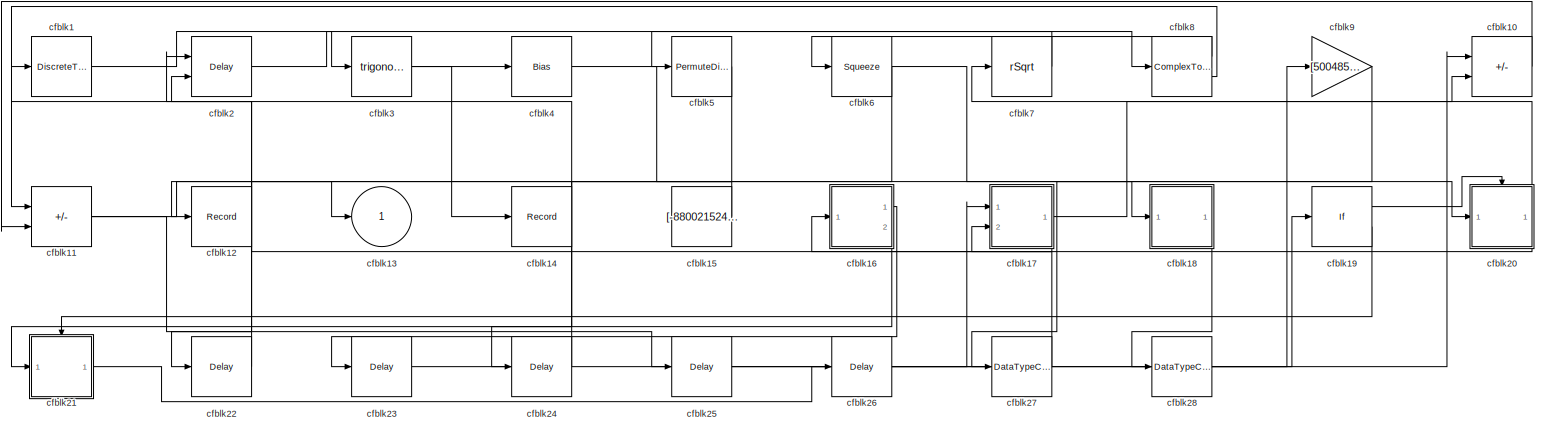
[diagram: root canvas - part 1/1, most of the canvas]
MODEL slx_1ea41b6b78b6
KIND model
CONFIG AbsTol = auto
CONFIG EnableMultiTasking = off
CONFIG FixedStep = auto
CONFIG MaxStep = auto
CONFIG MinStep = auto
CONFIG RelTol = 1e-3
CONFIG SampleTimeConstraint = Unconstrained
CONFIG SolverName = VariableStepAuto
CONFIG StartTime = 0.0
CONFIG StopTime = 10.0
BLOCK [DiscreteTransferFcn] cfblk1
  InputPortMap = u0
  Ports = [1, 1]
  SampleTime = 1
BLOCK [Sum] cfblk10
  IconShape = rectangular
  Inputs = +-
  Ports = [2, 1]
BLOCK [Sum] cfblk11
  IconShape = rectangular
  Inputs = --
  Ports = [2, 1]
BLOCK [Record] cfblk12
  FileSettingsInternal = {"entries":[{"content":{"excelSettings":{"content":{},"type":"Streamout.ExcelSettings"}},"type":"Streamout.FileSettingStorage","uuid":"99121057-6bef-407f-aaef-170d9c7b3167"}],"packageUris":["http://schema.mathworks.com/mf0/streamout_blocks/R2020a"],"version":"1.0"}
  Ports = [1]
  SignalsInternal = {"entries":[{"content":{"signals":[{"content":{"blockPath":["sampleModel288/cfblk12"],"channel":[],"dimensions":[1],"domain":"sampleModel288/cfblk12","lineColor":"#fe330a","plots":[1],"port":1,"sid":[""],"signalID":12254,"signalName":"cfblk15"},"type":"RecordBlkView.Signal","uuid":"5aa2cc36-c58b-4dea-8277-25bc0cf200c1"}]},"type":"RecordBlkView.InputSignals","uuid":"3db44b6d-059e-402a-99a5-882ccea2...<+98ch>
  VisualizationBindings = {"sparklinesplugin":{"info":[{"bindingParametersList":[],"subplotID":1}]}}
BLOCK [Outport] cfblk13
BLOCK [Record] cfblk14
  FileSettingsInternal = {"entries":[{"content":{"excelSettings":{"content":{},"type":"Streamout.ExcelSettings"}},"type":"Streamout.FileSettingStorage","uuid":"4ec19c18-7a8b-4270-a29a-3678415878d8"}],"packageUris":["http://schema.mathworks.com/mf0/streamout_blocks/R2020a"],"version":"1.0"}
  Ports = [1]
  SignalsInternal = {"entries":[{"content":{"signals":[{"content":{"blockPath":["sampleModel288/cfblk14"],"channel":[],"dimensions":[1],"domain":"sampleModel288/cfblk14","lineColor":"#ff13a6","plots":[1],"port":1,"sid":[""],"signalID":12250,"signalName":"cfblk3"},"type":"RecordBlkView.Signal","uuid":"5c43b3db-2ae5-42b3-9552-7b278d10c03a"}]},"type":"RecordBlkView.InputSignals","uuid":"71f823b3-9054-4343-a0f3-88d36fe46...<+97ch>
  VisualizationBindings = {"sparklinesplugin":{"info":[{"bindingParametersList":[],"subplotID":1}]}}
BLOCK [Constant] cfblk15
  SampleTime = 1
  Value = [-880021524.207456]
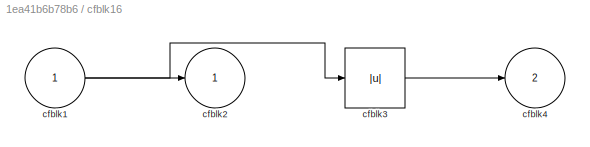
BLOCK [SubSystem] cfblk16
  Ports = [1, 2]
  RequestExecContextInheritance = off
BLOCK [Inport] cfblk16/cfblk1
BLOCK [Outport] cfblk16/cfblk2
BLOCK [Abs] cfblk16/cfblk3
  SaturateOnIntegerOverflow = off
BLOCK [Outport] cfblk16/cfblk4
  Port = 2
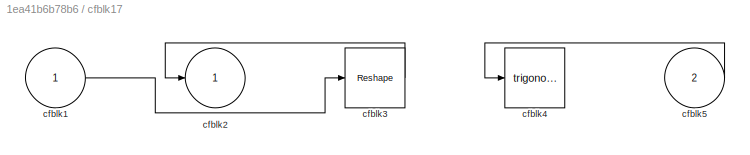
BLOCK [SubSystem] cfblk17
  Ports = [2, 1]
  RequestExecContextInheritance = off
BLOCK [Inport] cfblk17/cfblk1
BLOCK [Outport] cfblk17/cfblk2
BLOCK [Reshape] cfblk17/cfblk3
  Ports = [1, 1]
BLOCK [Trigonometry] cfblk17/cfblk4
  Ports = [1, 1]
BLOCK [Inport] cfblk17/cfblk5
  Port = 2
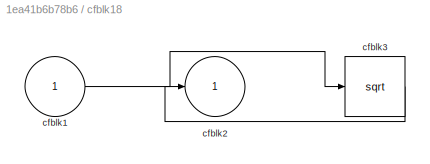
BLOCK [SubSystem] cfblk18
  Ports = [1, 1]
  RequestExecContextInheritance = off
BLOCK [Inport] cfblk18/cfblk1
BLOCK [Outport] cfblk18/cfblk2
BLOCK [Sqrt] cfblk18/cfblk3
BLOCK [If] cfblk19
  IfExpression = u1 >= 0
  Ports = [1, 2]
  SampleTime = 1
BLOCK [Delay] cfblk2
  DelayLengthSource = Input port
  InputPortMap = u0,p1
  Ports = [2, 1]
  SampleTime = 1
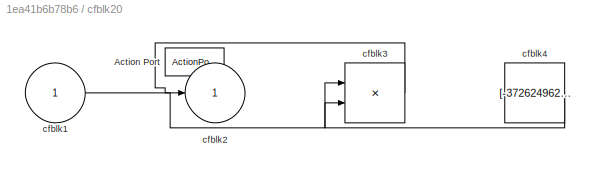
BLOCK [SubSystem] cfblk20
  Ports = [1, 1, 0, 0, 0, 0, 0, 1]
  RequestExecContextInheritance = off
  TreatAsAtomicUnit = on
BLOCK [ActionPort] cfblk20/Action Port
  ActionPortLabel = if(u1 >= 0)
BLOCK [Inport] cfblk20/cfblk1
BLOCK [Outport] cfblk20/cfblk2
BLOCK [Product] cfblk20/cfblk3
  Inputs = **
  Ports = [2, 1]
BLOCK [Constant] cfblk20/cfblk4
  SampleTime = 1
  Value = [-372624962.654697]
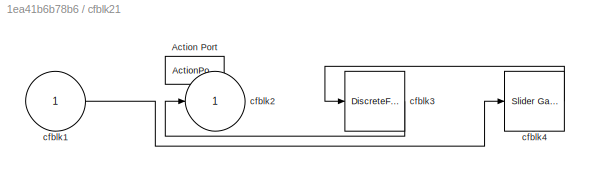
BLOCK [SubSystem] cfblk21
  Ports = [1, 1, 0, 0, 0, 0, 0, 1]
  RequestExecContextInheritance = off
  TreatAsAtomicUnit = on
BLOCK [ActionPort] cfblk21/Action Port
  ActionPortLabel = else
BLOCK [Inport] cfblk21/cfblk1
BLOCK [Outport] cfblk21/cfblk2
BLOCK [DiscreteFir] cfblk21/cfblk3
  InputPortMap = u0
  OutputPortMap = o0
  Ports = [1, 1]
BLOCK [Reference] cfblk21/cfblk4  REF=simulink/Math
Operations/Slider
Gain
  Ports = [1, 1]
  SourceBlock = simulink/Math\nOperations/Slider\nGain
  SourceProductBaseCode = SL
  SourceType = Slider Gain
BLOCK [Delay] cfblk22
  InputPortMap = u0
  Ports = [1, 1]
  SampleTime = 1
BLOCK [Delay] cfblk23
  InputPortMap = u0
  Ports = [1, 1]
  SampleTime = 1
BLOCK [Delay] cfblk24
  InputPortMap = u0
  Ports = [1, 1]
  SampleTime = 1
BLOCK [Delay] cfblk25
  InputPortMap = u0
  Ports = [1, 1]
  SampleTime = 1
BLOCK [Delay] cfblk26
  InputPortMap = u0
  Ports = [1, 1]
  SampleTime = 1
BLOCK [DataTypeConversion] cfblk27
  RndMeth = Floor
  SaturateOnIntegerOverflow = off
BLOCK [DataTypeConversion] cfblk28
  RndMeth = Floor
  SaturateOnIntegerOverflow = off
BLOCK [Trigonometry] cfblk3
  Ports = [1, 1]
BLOCK [Bias] cfblk4
  Bias = [-421216982.617576]
  SaturateOnIntegerOverflow = off
BLOCK [PermuteDimensions] cfblk5
BLOCK [Squeeze] cfblk6
BLOCK [Sqrt] cfblk7
  AlgorithmType = Newton-Raphson
  Operator = rSqrt
BLOCK [ComplexToRealImag] cfblk8
  Ports = [1, 2]
BLOCK [Gain] cfblk9
  Gain = [500485660.492190]
LINE cfblk10:1 -> cfblk11:2
NET cfblk11:1 -> cfblk13:1, cfblk25:1
LINE cfblk15:1 -> cfblk12:1
NET cfblk16/cfblk1:1 -> cfblk16/cfblk2:1, cfblk16/cfblk3:1
LINE cfblk16/cfblk3:1 -> cfblk16/cfblk4:1
LINE cfblk16:1 -> cfblk23:1
LINE cfblk16:2 -> cfblk24:1
LINE cfblk17/cfblk1:1 -> cfblk17/cfblk3:1
LINE cfblk17/cfblk3:1 -> cfblk17/cfblk2:1
LINE cfblk17/cfblk5:1 -> cfblk17/cfblk4:1
NET cfblk17:1 -> cfblk10:2, cfblk16:1
LINE cfblk18/cfblk1:1 -> cfblk18/cfblk3:1
LINE cfblk18/cfblk3:1 -> cfblk18/cfblk2:1
LINE cfblk18:1 -> cfblk28:1
LINE cfblk19:1 -> cfblk20:ifaction
LINE cfblk19:2 -> cfblk21:ifaction
LINE cfblk1:1 -> cfblk3:1
LINE cfblk20/cfblk1:1 -> cfblk20/cfblk3:1
LINE cfblk20/cfblk3:1 -> cfblk20/cfblk2:1
LINE cfblk20/cfblk4:1 -> cfblk20/cfblk3:2
NET cfblk20:1 -> cfblk17:2, cfblk7:1
LINE cfblk21/cfblk1:1 -> cfblk21/cfblk4:1
LINE cfblk21/cfblk3:1 -> cfblk21/cfblk2:1
LINE cfblk21/cfblk4:1 -> cfblk21/cfblk3:1
LINE cfblk21:1 -> cfblk26:1
LINE cfblk22:1 -> cfblk2:1
LINE cfblk23:1 -> cfblk17:1
LINE cfblk24:1 -> cfblk1:1
LINE cfblk25:1 -> cfblk10:1
LINE cfblk26:1 -> cfblk19:1
LINE cfblk27:1 -> cfblk2:2
LINE cfblk28:1 -> cfblk9:1
LINE cfblk2:1 -> cfblk8:1
NET cfblk3:1 -> cfblk14:1, cfblk4:1
LINE cfblk4:1 -> cfblk18:1
LINE cfblk5:1 -> cfblk22:1
NET cfblk6:1 -> cfblk20:1, cfblk21:1
LINE cfblk7:1 -> cfblk5:1
LINE cfblk8:1 -> cfblk6:1
LINE cfblk8:2 -> cfblk11:1
LINE cfblk9:1 -> cfblk27:1
note: NET lines group one-source signal fan-out (src -> all destinations, sorted); 1:1 wires keep LINE
